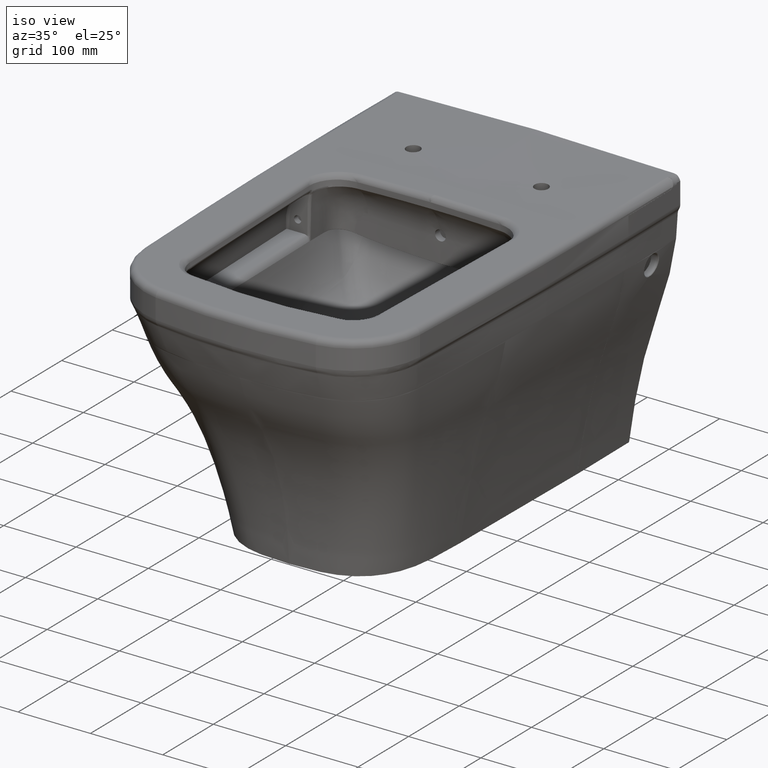
[diagram: clean part render]
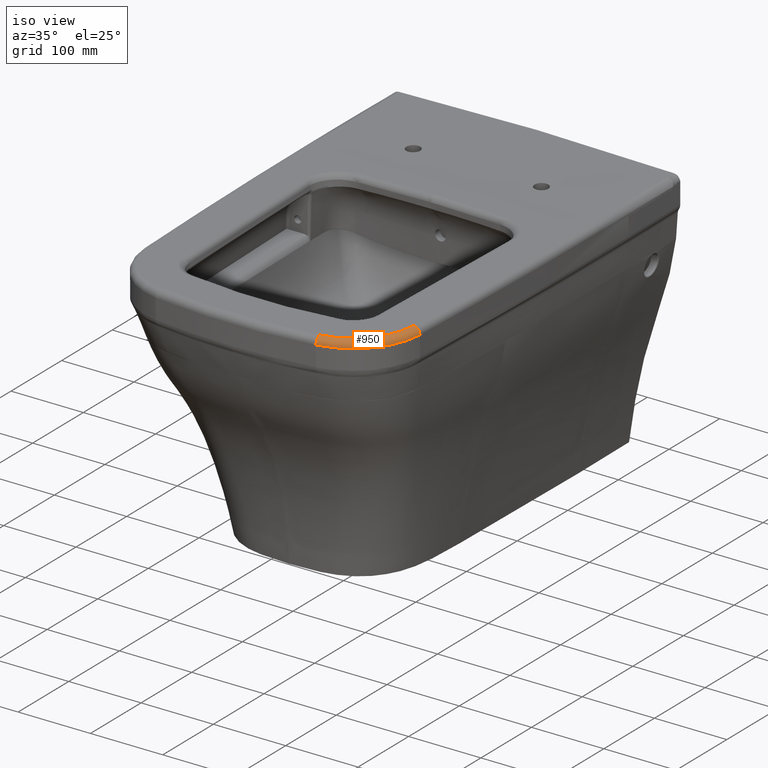
[diagram: same view with one face highlighted and labeled with its STEP entity id]
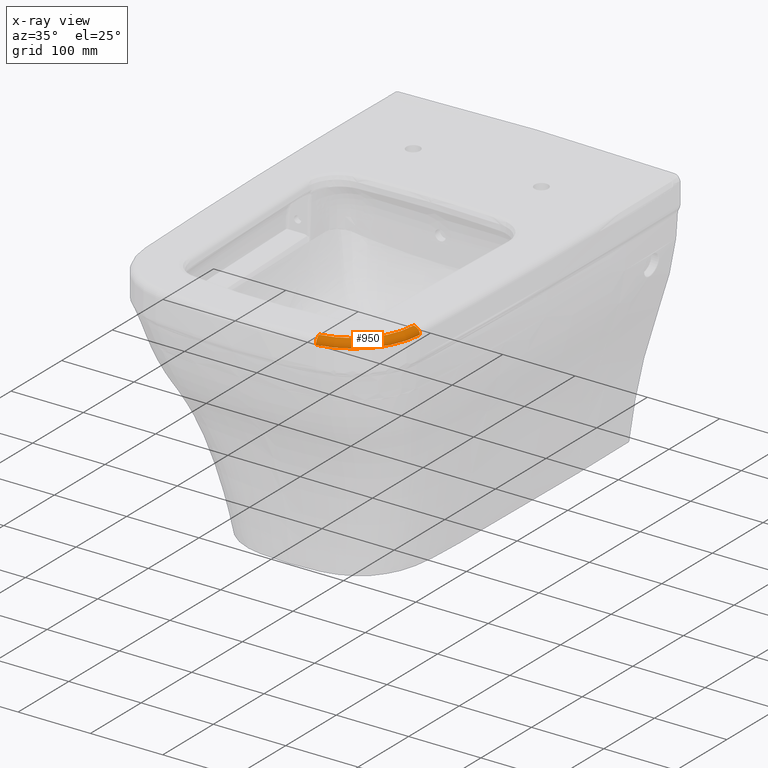
[diagram: x-ray of the same camera — body ghosted, the highlighted face saturated]
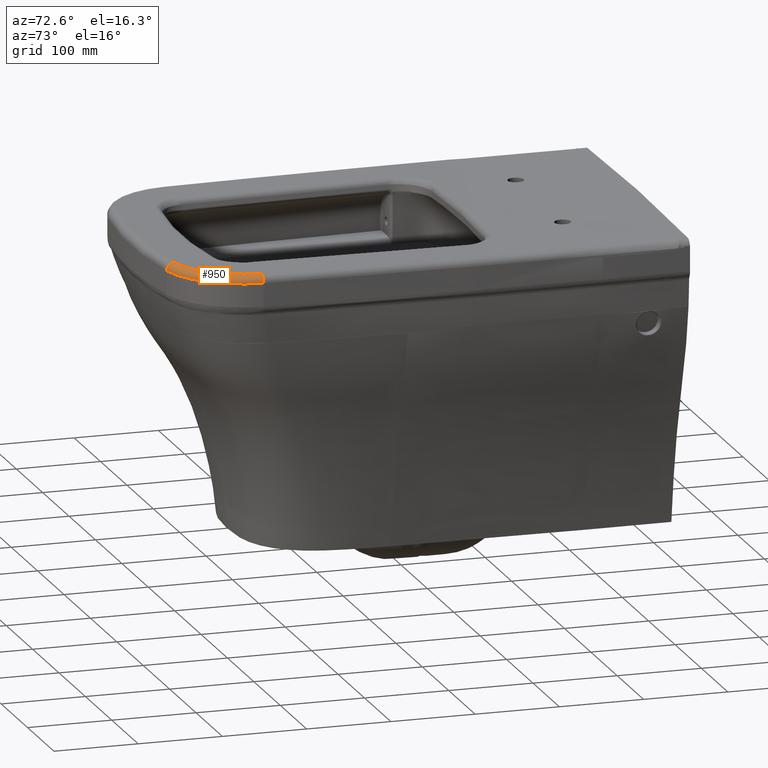
[diagram: same view with one face highlighted and labeled with its STEP entity id]
A machine part, iso view. The second image highlights one B-rep face of the part: STEP entity #950.
The next image is the same camera in x-ray: the body ghosted, the highlighted face saturated — about 0% of this face is hidden behind the body in this view.
A second angle (auxiliary view) of the same face is appended — the face is thin or edge-on in the first view.
In plain terms, the highlighted toroidal blend (fillet) surface has major radius 86.1708 mm and minor (blend) radius 8.9528 mm.
Its self-contained STEP definition (entity closure, byte-faithful):
#47=TOROIDAL_SURFACE('',#4315,86.170786516854,8.95280898876405);
#93=CIRCLE('',#4245,8.95280898876405);
#98=CIRCLE('',#4253,86.170786516854);
#114=CIRCLE('',#4293,95.123595505618);
#130=CIRCLE('',#4314,8.95280898876405);
#456=FACE_OUTER_BOUND('',#1268,.T.);
#950=ADVANCED_FACE('',(#456),#47,.T.);
#1268=EDGE_LOOP('',(#2407,#2408,#2409,#2410));
#2407=ORIENTED_EDGE('',*,*,#3580,.F.);
#2408=ORIENTED_EDGE('',*,*,#3626,.T.);
#2409=ORIENTED_EDGE('',*,*,#3410,.F.);
#2410=ORIENTED_EDGE('',*,*,#3402,.F.);
#2722=VERTEX_POINT('',#23815);
#2866=VERTEX_POINT('',#38624);
#2871=VERTEX_POINT('',#38700);
#2972=VERTEX_POINT('',#67221);
#3402=EDGE_CURVE('',#2722,#2866,#93,.T.);
#3410=EDGE_CURVE('',#2866,#2871,#98,.T.);
#3580=EDGE_CURVE('',#2972,#2722,#114,.T.);
#3626=EDGE_CURVE('',#2972,#2871,#130,.T.);
#4245=AXIS2_PLACEMENT_3D('',#38623,#4513,#4514);
#4253=AXIS2_PLACEMENT_3D('',#38699,#4529,#4530);
#4293=AXIS2_PLACEMENT_3D('',#67222,#4619,#4620);
#4314=AXIS2_PLACEMENT_3D('',#71738,#4662,#4663);
#4315=AXIS2_PLACEMENT_3D('',#71739,#4664,#4665);
#4513=DIRECTION('',(-0.988945440112697,-0.14827985864676,3.43794220595732E-12));
#4514=DIRECTION('',(0.14827985864676,-0.988945440112692,-5.157972094396E-13));
#4529=DIRECTION('',(3.47810669154568E-12,-5.49797214760162E-24,1.));
#4530=DIRECTION('',(1.,-3.16172964476454E-12,-3.47810669154568E-12));
#4619=DIRECTION('',(-3.47810669154568E-12,5.49797214760162E-24,-1.));
#4620=DIRECTION('',(1.,-3.16177511764883E-12,-3.47810581619267E-12));
#4662=DIRECTION('',(-0.0434828798955718,-0.999054172282958,1.49284195609706E-13));
#4663=DIRECTION('',(0.999054172282959,-0.0434828798955779,-3.47475257583784E-12));
#4664=DIRECTION('',(3.47810669154568E-12,-5.49797214760162E-24,1.));
#4665=DIRECTION('',(-1.,3.16177511764883E-12,3.47810581619267E-12));
#23815=CARTESIAN_POINT('',(110.788105014007,-612.841648891045,-8.95280898914938));
#38623=CARTESIAN_POINT('',(109.460583762662,-603.987809265406,-8.95280898914476));
#38624=CARTESIAN_POINT('',(109.460583762693,-603.987809265406,-3.80715588848839E-10));
#38699=CARTESIAN_POINT('',(96.6831917184934,-518.769602868639,-3.36274456078938E-10));
#38700=CARTESIAN_POINT('',(182.77247551706,-522.516556829258,-6.3570217012913E-10));
#67221=CARTESIAN_POINT('',(191.716816690907,-522.905850747244,-8.95280898943086));
#67222=CARTESIAN_POINT('',(96.6831917184623,-518.769602868639,-8.95280898910032));
#71738=CARTESIAN_POINT('',(182.772475517028,-522.516556829258,-8.95280898939975));
#71739=CARTESIAN_POINT('',(96.6831917184623,-518.769602868639,-8.95280898910032));